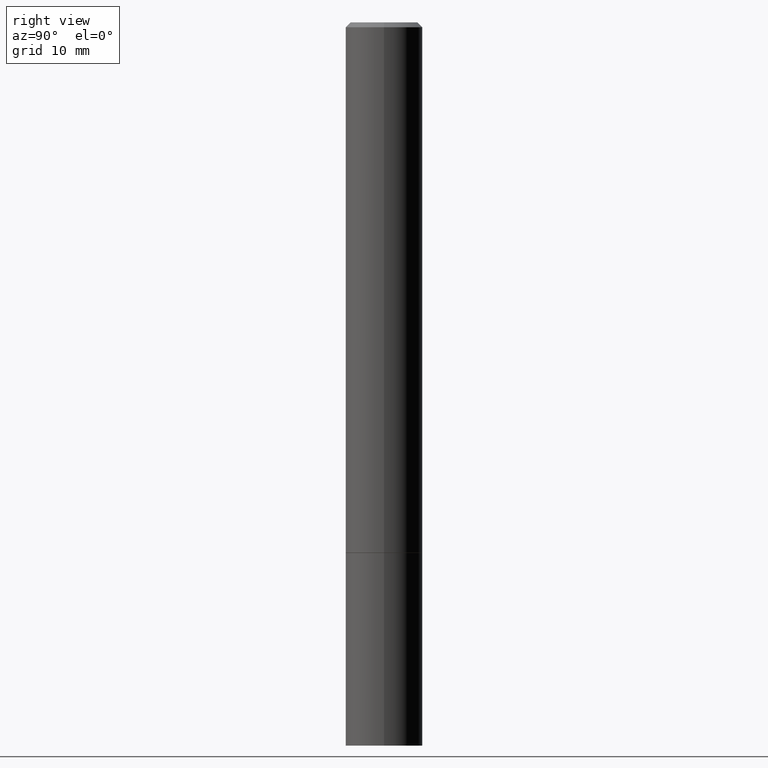
[diagram: clean part render]
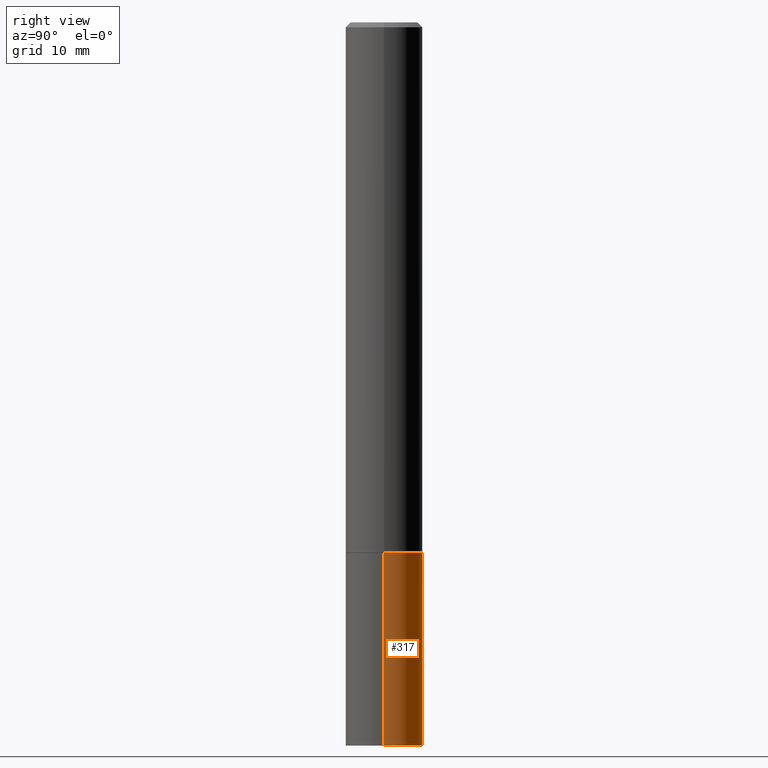
[diagram: same view with one face highlighted and labeled with its STEP entity id]
A machine part, right view. The second image highlights one B-rep face of the part: STEP entity #317.
In plain terms, the highlighted cylindrical surface (partial cylindrical patch) has radius 4.0005 mm, axis along (-0, 0, 1).
Its self-contained STEP definition (entity closure, byte-faithful):
#3 = CARTESIAN_POINT ( 'NONE',  ( 0.1575000000000000011, -8.660270312866534114E-15, -2.165399999999999991 ) ) ;
#16 = CARTESIAN_POINT ( 'NONE',  ( 0.1575000000000000011, -1.099816621735586889E-15, 7.679978421878598033E-30 ) ) ;
#23 = DIRECTION ( 'NONE',  ( -2.445468806185136597E-29, 3.491481338843145583E-15, 1.000000000000000000 ) ) ;
#25 = ORIENTED_EDGE ( 'NONE', *, *, #223, .F. ) ;
#33 = ORIENTED_EDGE ( 'NONE', *, *, #118, .T. ) ;
#39 = FACE_OUTER_BOUND ( 'NONE', #255, .T. ) ;
#45 = CARTESIAN_POINT ( 'NONE',  ( 0.1575000000000000011, -1.140946271907162522E-14, -2.952799999999999869 ) ) ;
#59 = DIRECTION ( 'NONE',  ( -2.445468806185136877E-29, 3.491481338843145188E-15, 1.000000000000000000 ) ) ;
#86 = DIRECTION ( 'NONE',  ( -2.445468806185136877E-29, 3.491481338843145188E-15, 1.000000000000000000 ) ) ;
#88 = DIRECTION ( 'NONE',  ( -2.445468806185136597E-29, 3.491481338843145583E-15, 1.000000000000000000 ) ) ;
#111 = CIRCLE ( 'NONE', #117, 0.1575000000000000011 ) ;
#117 = AXIS2_PLACEMENT_3D ( 'NONE', #143, #88, #173 ) ;
#118 = EDGE_CURVE ( 'NONE', #188, #137, #159, .T. ) ;
#136 = CARTESIAN_POINT ( 'NONE',  ( -0.1575000000000000011, 1.119104808822157801E-15, -7.747322767151475583E-30 ) ) ;
#137 = VERTEX_POINT ( 'NONE', #229 ) ;
#142 = CYLINDRICAL_SURFACE ( 'NONE', #257, 0.1575000000000000011 ) ;
#143 = CARTESIAN_POINT ( 'NONE',  ( 7.220980290903470182E-29, -1.030964609733603853E-14, -2.952799999999999869 ) ) ;
#144 = DIRECTION ( 'NONE',  ( 1.000000000000000000, -6.982962677686265922E-15, 4.876176775795935232E-29 ) ) ;
#159 = LINE ( 'NONE', #136, #354 ) ;
#163 = VERTEX_POINT ( 'NONE', #45 ) ;
#173 = DIRECTION ( 'NONE',  ( 1.000000000000000000, -6.982962677686261977E-15, 0.000000000000000000 ) ) ;
#174 = DIRECTION ( 'NONE',  ( -2.445468806185136597E-29, 3.491481338843145583E-15, 1.000000000000000000 ) ) ;
#187 = CIRCLE ( 'NONE', #342, 0.1575000000000000011 ) ;
#188 = VERTEX_POINT ( 'NONE', #274 ) ;
#216 = EDGE_CURVE ( 'NONE', #163, #188, #111, .T. ) ;
#223 = EDGE_CURVE ( 'NONE', #163, #288, #292, .T. ) ;
#229 = CARTESIAN_POINT ( 'NONE',  ( -0.1575000000000000011, -7.815945085411336161E-15, -2.165399999999999991 ) ) ;
#255 = EDGE_LOOP ( 'NONE', ( #297, #33, #302, #25 ) ) ;
#257 = AXIS2_PLACEMENT_3D ( 'NONE', #259, #174, #144 ) ;
#259 = CARTESIAN_POINT ( 'NONE',  ( 0.000000000000000000, 0.000000000000000000, 0.000000000000000000 ) ) ;
#266 = EDGE_CURVE ( 'NONE', #288, #137, #187, .T. ) ;
#268 = CARTESIAN_POINT ( 'NONE',  ( 5.295418152913294345E-29, -7.560453691130947423E-15, -2.165399999999999991 ) ) ;
#274 = CARTESIAN_POINT ( 'NONE',  ( -0.1575000000000000011, -7.815945085411336161E-15, -2.952799999999999869 ) ) ;
#288 = VERTEX_POINT ( 'NONE', #3 ) ;
#292 = LINE ( 'NONE', #16, #301 ) ;
#297 = ORIENTED_EDGE ( 'NONE', *, *, #216, .T. ) ;
#300 = DIRECTION ( 'NONE',  ( 1.000000000000000000, -6.982962677686268288E-15, 0.000000000000000000 ) ) ;
#301 = VECTOR ( 'NONE', #86, 39.37007874015748143 ) ;
#302 = ORIENTED_EDGE ( 'NONE', *, *, #266, .F. ) ;
#317 = ADVANCED_FACE ( 'NONE', ( #39 ), #142, .T. ) ;
#342 = AXIS2_PLACEMENT_3D ( 'NONE', #268, #23, #300 ) ;
#354 = VECTOR ( 'NONE', #59, 39.37007874015748143 ) ;